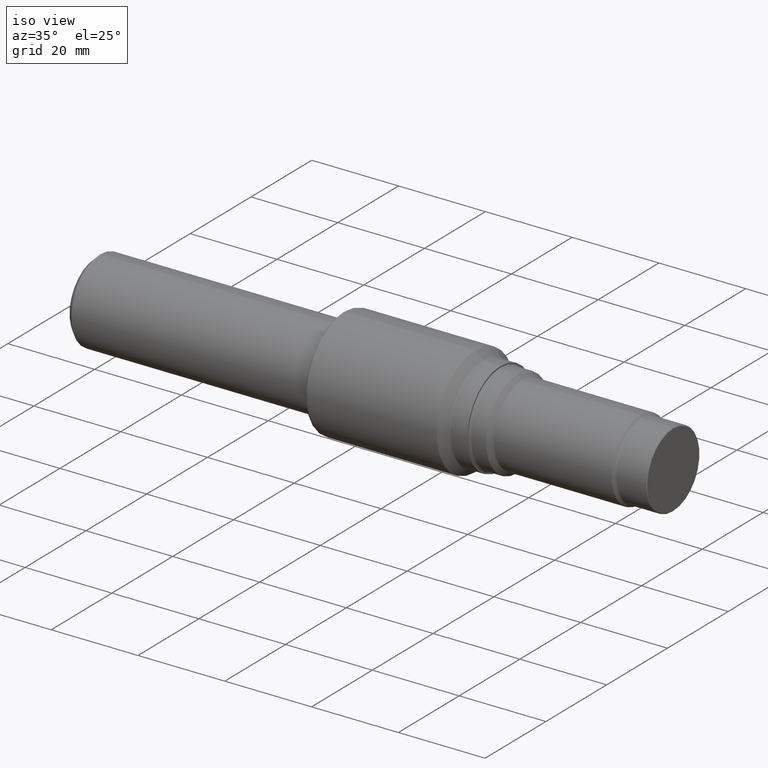
[diagram: clean part render]
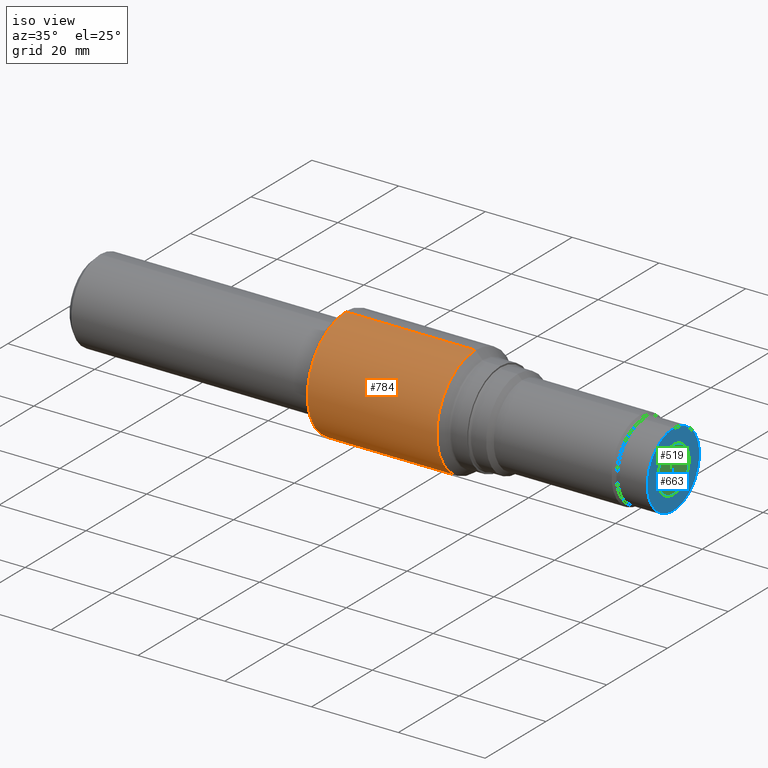
[diagram: same view with three faces highlighted in distinct colors, each labeled with its STEP entity id]
A machine part, iso view with three faces highlighted in distinct colors.
Their STEP definitions:

[orange] entity #784 — the highlighted cylindrical surface (partial cylindrical patch) has radius 12.7 mm, axis along (-1, -0, -0).
#41 = ORIENTED_EDGE ( 'NONE', *, *, #657, .T. ) ;
#42 = DIRECTION ( 'NONE',  ( -1.000000000000000000, -0.000000000000000000, -0.000000000000000000 ) ) ;
#108 = EDGE_LOOP ( 'NONE', ( #998, #509, #41, #301 ) ) ;
#136 = CARTESIAN_POINT ( 'NONE',  ( 0.000000000000000000, 0.000000000000000000, 0.000000000000000000 ) ) ;
#143 = VERTEX_POINT ( 'NONE', #976 ) ;
#204 = LINE ( 'NONE', #449, #665 ) ;
#269 = CIRCLE ( 'NONE', #517, 0.5000000000000000000 ) ;
#301 = ORIENTED_EDGE ( 'NONE', *, *, #750, .F. ) ;
#314 = VERTEX_POINT ( 'NONE', #516 ) ;
#376 = CARTESIAN_POINT ( 'NONE',  ( 2.279999999999999805, 0.000000000000000000, 0.000000000000000000 ) ) ;
#381 = DIRECTION ( 'NONE',  ( 0.000000000000000000, 0.000000000000000000, 1.000000000000000000 ) ) ;
#431 = VERTEX_POINT ( 'NONE', #974 ) ;
#439 = VERTEX_POINT ( 'NONE', #795 ) ;
#449 = CARTESIAN_POINT ( 'NONE',  ( 0.000000000000000000, 0.000000000000000000, 0.5000000000000000000 ) ) ;
#452 = FACE_OUTER_BOUND ( 'NONE', #108, .T. ) ;
#477 = EDGE_CURVE ( 'NONE', #314, #439, #881, .T. ) ;
#496 = AXIS2_PLACEMENT_3D ( 'NONE', #136, #42, #381 ) ;
#509 = ORIENTED_EDGE ( 'NONE', *, *, #826, .T. ) ;
#516 = CARTESIAN_POINT ( 'NONE',  ( 3.454400000000000137, 6.123233995736766036E-17, -0.5000000000000000000 ) ) ;
#517 = AXIS2_PLACEMENT_3D ( 'NONE', #618, #719, #567 ) ;
#539 = DIRECTION ( 'NONE',  ( -1.000000000000000000, -0.000000000000000000, -0.000000000000000000 ) ) ;
#567 = DIRECTION ( 'NONE',  ( 0.000000000000000000, 0.000000000000000000, 1.000000000000000000 ) ) ;
#568 = CARTESIAN_POINT ( 'NONE',  ( 0.000000000000000000, 6.123233995736766036E-17, -0.5000000000000000000 ) ) ;
#618 = CARTESIAN_POINT ( 'NONE',  ( 3.454400000000000137, 0.000000000000000000, 0.000000000000000000 ) ) ;
#624 = DIRECTION ( 'NONE',  ( 0.000000000000000000, 0.000000000000000000, 1.000000000000000000 ) ) ;
#657 = EDGE_CURVE ( 'NONE', #143, #431, #204, .T. ) ;
#665 = VECTOR ( 'NONE', #853, 39.37007874015748143 ) ;
#699 = AXIS2_PLACEMENT_3D ( 'NONE', #376, #539, #624 ) ;
#719 = DIRECTION ( 'NONE',  ( -1.000000000000000000, -0.000000000000000000, -0.000000000000000000 ) ) ;
#745 = CIRCLE ( 'NONE', #699, 0.5000000000000000000 ) ;
#750 = EDGE_CURVE ( 'NONE', #439, #431, #745, .T. ) ;
#784 = ADVANCED_FACE ( 'NONE', ( #452 ), #1010, .T. ) ;
#795 = CARTESIAN_POINT ( 'NONE',  ( 2.279999999999999805, 6.123233995736766036E-17, -0.5000000000000000000 ) ) ;
#826 = EDGE_CURVE ( 'NONE', #314, #143, #269, .T. ) ;
#838 = VECTOR ( 'NONE', #1032, 39.37007874015748143 ) ;
#853 = DIRECTION ( 'NONE',  ( -1.000000000000000000, -0.000000000000000000, -0.000000000000000000 ) ) ;
#881 = LINE ( 'NONE', #568, #838 ) ;
#974 = CARTESIAN_POINT ( 'NONE',  ( 2.279999999999999805, 0.000000000000000000, 0.5000000000000000000 ) ) ;
#976 = CARTESIAN_POINT ( 'NONE',  ( 3.454400000000000137, 0.000000000000000000, 0.5000000000000000000 ) ) ;
#998 = ORIENTED_EDGE ( 'NONE', *, *, #477, .F. ) ;
#1010 = CYLINDRICAL_SURFACE ( 'NONE', #496, 0.5000000000000000000 ) ;
#1032 = DIRECTION ( 'NONE',  ( -1.000000000000000000, -0.000000000000000000, -0.000000000000000000 ) ) ;

[blue] entity #663 — the highlighted planar face has unit normal (-1, 0, -0).
#4 = DIRECTION ( 'NONE',  ( 0.000000000000000000, 0.000000000000000000, 1.000000000000000000 ) ) ;
#14 = EDGE_CURVE ( 'NONE', #310, #928, #464, .T. ) ;
#40 = CARTESIAN_POINT ( 'NONE',  ( 5.250000000000000000, 0.000000000000000000, 0.000000000000000000 ) ) ;
#66 = VERTEX_POINT ( 'NONE', #467 ) ;
#118 = AXIS2_PLACEMENT_3D ( 'NONE', #588, #831, #343 ) ;
#181 = ORIENTED_EDGE ( 'NONE', *, *, #14, .T. ) ;
#190 = CIRCLE ( 'NONE', #858, 0.3379000000000003667 ) ;
#201 = DIRECTION ( 'NONE',  ( -1.000000000000000000, 0.000000000000000000, -0.000000000000000000 ) ) ;
#260 = EDGE_LOOP ( 'NONE', ( #356, #617 ) ) ;
#263 = CARTESIAN_POINT ( 'NONE',  ( 5.250000000000000000, 0.000000000000000000, 0.2049999999999999323 ) ) ;
#272 = AXIS2_PLACEMENT_3D ( 'NONE', #40, #609, #4 ) ;
#277 = EDGE_LOOP ( 'NONE', ( #181, #337 ) ) ;
#310 = VERTEX_POINT ( 'NONE', #263 ) ;
#337 = ORIENTED_EDGE ( 'NONE', *, *, #913, .T. ) ;
#343 = DIRECTION ( 'NONE',  ( 0.000000000000000000, 0.000000000000000000, 1.000000000000000000 ) ) ;
#356 = ORIENTED_EDGE ( 'NONE', *, *, #1017, .F. ) ;
#399 = EDGE_CURVE ( 'NONE', #675, #66, #190, .T. ) ;
#407 = AXIS2_PLACEMENT_3D ( 'NONE', #474, #890, #794 ) ;
#464 = CIRCLE ( 'NONE', #272, 0.2049999999999999323 ) ;
#467 = CARTESIAN_POINT ( 'NONE',  ( 5.250000000000000000, 0.000000000000000000, 0.3379000000000003667 ) ) ;
#474 = CARTESIAN_POINT ( 'NONE',  ( 5.250000000000000000, 0.000000000000000000, 0.000000000000000000 ) ) ;
#582 = CIRCLE ( 'NONE', #118, 0.3379000000000003667 ) ;
#588 = CARTESIAN_POINT ( 'NONE',  ( 5.250000000000000000, 0.000000000000000000, 0.000000000000000000 ) ) ;
#609 = DIRECTION ( 'NONE',  ( -1.000000000000000000, -0.000000000000000000, -0.000000000000000000 ) ) ;
#617 = ORIENTED_EDGE ( 'NONE', *, *, #399, .F. ) ;
#663 = ADVANCED_FACE ( 'NONE', ( #760, #705 ), #941, .F. ) ;
#675 = VERTEX_POINT ( 'NONE', #860 ) ;
#701 = CIRCLE ( 'NONE', #407, 0.2049999999999999323 ) ;
#705 = FACE_BOUND ( 'NONE', #277, .T. ) ;
#760 = FACE_OUTER_BOUND ( 'NONE', #260, .T. ) ;
#779 = DIRECTION ( 'NONE',  ( -1.000000000000000000, -0.000000000000000000, -0.000000000000000000 ) ) ;
#794 = DIRECTION ( 'NONE',  ( 0.000000000000000000, 0.000000000000000000, 1.000000000000000000 ) ) ;
#831 = DIRECTION ( 'NONE',  ( -1.000000000000000000, -0.000000000000000000, -0.000000000000000000 ) ) ;
#833 = AXIS2_PLACEMENT_3D ( 'NONE', #945, #201, #864 ) ;
#858 = AXIS2_PLACEMENT_3D ( 'NONE', #942, #779, #869 ) ;
#860 = CARTESIAN_POINT ( 'NONE',  ( 5.250000000000000000, 4.174820938293329302E-17, -0.3379000000000003667 ) ) ;
#864 = DIRECTION ( 'NONE',  ( -0.000000000000000000, 0.000000000000000000, 1.000000000000000000 ) ) ;
#869 = DIRECTION ( 'NONE',  ( 0.000000000000000000, 0.000000000000000000, 1.000000000000000000 ) ) ;
#890 = DIRECTION ( 'NONE',  ( -1.000000000000000000, -0.000000000000000000, -0.000000000000000000 ) ) ;
#913 = EDGE_CURVE ( 'NONE', #928, #310, #701, .T. ) ;
#928 = VERTEX_POINT ( 'NONE', #966 ) ;
#941 = PLANE ( 'NONE',  #833 ) ;
#942 = CARTESIAN_POINT ( 'NONE',  ( 5.250000000000000000, 0.000000000000000000, 0.000000000000000000 ) ) ;
#945 = CARTESIAN_POINT ( 'NONE',  ( 5.250000000000000000, 0.3379000000000003667, 0.000000000000000000 ) ) ;
#966 = CARTESIAN_POINT ( 'NONE',  ( 5.250000000000000000, 2.510525938252073446E-17, -0.2049999999999999323 ) ) ;
#1017 = EDGE_CURVE ( 'NONE', #66, #675, #582, .T. ) ;

[green] entity #519 — the highlighted planar face has unit normal (-1, 0, -0).
#2 = CIRCLE ( 'NONE', #85, 0.2049999999999999323 ) ;
#32 = FACE_OUTER_BOUND ( 'NONE', #524, .T. ) ;
#46 = DIRECTION ( 'NONE',  ( 0.000000000000000000, 0.000000000000000000, 1.000000000000000000 ) ) ;
#85 = AXIS2_PLACEMENT_3D ( 'NONE', #299, #222, #46 ) ;
#97 = DIRECTION ( 'NONE',  ( -1.000000000000000000, 0.000000000000000000, -0.000000000000000000 ) ) ;
#99 = EDGE_CURVE ( 'NONE', #832, #681, #667, .T. ) ;
#135 = ORIENTED_EDGE ( 'NONE', *, *, #99, .F. ) ;
#222 = DIRECTION ( 'NONE',  ( -1.000000000000000000, -0.000000000000000000, -0.000000000000000000 ) ) ;
#299 = CARTESIAN_POINT ( 'NONE',  ( 5.249900000000000233, 0.000000000000000000, 0.000000000000000000 ) ) ;
#300 = DIRECTION ( 'NONE',  ( -1.000000000000000000, -0.000000000000000000, -0.000000000000000000 ) ) ;
#435 = PLANE ( 'NONE',  #466 ) ;
#466 = AXIS2_PLACEMENT_3D ( 'NONE', #684, #97, #908 ) ;
#519 = ADVANCED_FACE ( 'NONE', ( #32 ), #435, .F. ) ;
#524 = EDGE_LOOP ( 'NONE', ( #135, #940 ) ) ;
#533 = CARTESIAN_POINT ( 'NONE',  ( 5.249900000000000233, 2.510525938252073446E-17, -0.2049999999999999323 ) ) ;
#667 = CIRCLE ( 'NONE', #906, 0.2049999999999999323 ) ;
#681 = VERTEX_POINT ( 'NONE', #533 ) ;
#684 = CARTESIAN_POINT ( 'NONE',  ( 5.249900000000000233, 0.2049999999999999323, 0.000000000000000000 ) ) ;
#806 = EDGE_CURVE ( 'NONE', #681, #832, #2, .T. ) ;
#832 = VERTEX_POINT ( 'NONE', #1039 ) ;
#906 = AXIS2_PLACEMENT_3D ( 'NONE', #944, #300, #958 ) ;
#908 = DIRECTION ( 'NONE',  ( -0.000000000000000000, 0.000000000000000000, 1.000000000000000000 ) ) ;
#940 = ORIENTED_EDGE ( 'NONE', *, *, #806, .F. ) ;
#944 = CARTESIAN_POINT ( 'NONE',  ( 5.249900000000000233, 0.000000000000000000, 0.000000000000000000 ) ) ;
#958 = DIRECTION ( 'NONE',  ( 0.000000000000000000, 0.000000000000000000, 1.000000000000000000 ) ) ;
#1039 = CARTESIAN_POINT ( 'NONE',  ( 5.249900000000000233, 0.000000000000000000, 0.2049999999999999323 ) ) ;